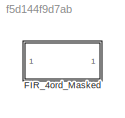
MODEL slx_f5d144f9d7ab
KIND library
CONFIG AbsTol = auto
CONFIG FixedStep = auto
CONFIG MaxStep = auto
CONFIG MinStep = auto
CONFIG RelTol = 1e-3
CONFIG SampleTimeConstraint = Unconstrained
CONFIG Solver = ode45
CONFIG SolverMode = Auto
CONFIG SolverName = ode45
CONFIG StartTime = 0.0
CONFIG StopTime = 10.0
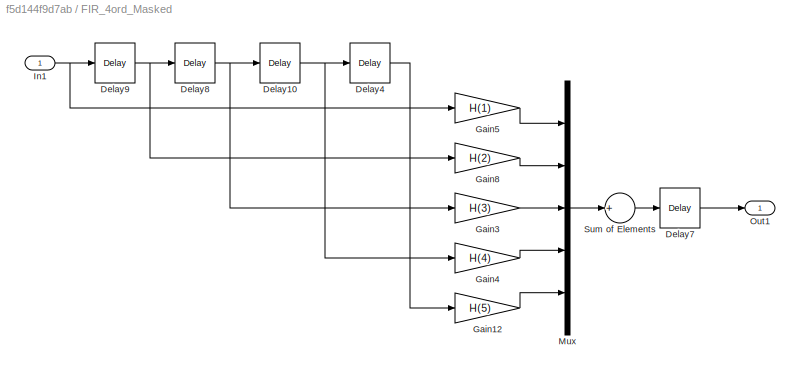
BLOCK [SubSystem] FIR_4ord_Masked
  Ports = [1, 1]
  RequestExecContextInheritance = off
  Variant = off
BLOCK [Reference] FIR_4ord_Masked/Delay10  REF=dspsigops/Delay
  Ports = [1, 1]
  SourceBlock = dspsigops/Delay
  SourceType = Delay
  UserDataPersistent = on
BLOCK [Reference] FIR_4ord_Masked/Delay4  REF=dspsigops/Delay
  Ports = [1, 1]
  SourceBlock = dspsigops/Delay
  SourceType = Delay
  UserDataPersistent = on
BLOCK [Reference] FIR_4ord_Masked/Delay7  REF=dspsigops/Delay
  Ports = [1, 1]
  SourceBlock = dspsigops/Delay
  SourceType = Delay
  UserDataPersistent = on
BLOCK [Reference] FIR_4ord_Masked/Delay8  REF=dspsigops/Delay
  Ports = [1, 1]
  SourceBlock = dspsigops/Delay
  SourceType = Delay
  UserDataPersistent = on
BLOCK [Reference] FIR_4ord_Masked/Delay9  REF=dspsigops/Delay
  Ports = [1, 1]
  SourceBlock = dspsigops/Delay
  SourceType = Delay
  UserDataPersistent = on
BLOCK [Gain] FIR_4ord_Masked/Gain12
  Gain = H(5)
  ParamDataTypeStr = Inherit: Inherit via internal rule
  RndMeth = Nearest
  SaturateOnIntegerOverflow = off
BLOCK [Gain] FIR_4ord_Masked/Gain3
  Gain = H(3)
  ParamDataTypeStr = Inherit: Inherit via internal rule
  RndMeth = Nearest
  SaturateOnIntegerOverflow = off
BLOCK [Gain] FIR_4ord_Masked/Gain4
  Gain = H(4)
  ParamDataTypeStr = Inherit: Inherit via internal rule
  RndMeth = Nearest
  SaturateOnIntegerOverflow = off
BLOCK [Gain] FIR_4ord_Masked/Gain5
  Gain = H(1)
  ParamDataTypeStr = Inherit: Inherit via internal rule
  RndMeth = Nearest
  SaturateOnIntegerOverflow = off
BLOCK [Gain] FIR_4ord_Masked/Gain8
  Gain = H(2)
  ParamDataTypeStr = Inherit: Inherit via internal rule
  RndMeth = Nearest
  SaturateOnIntegerOverflow = off
BLOCK [Inport] FIR_4ord_Masked/In1
  IconDisplay = Port number
BLOCK [Mux] FIR_4ord_Masked/Mux
  DisplayOption = bar
  Inputs = 5
  Ports = [5, 1]
BLOCK [Outport] FIR_4ord_Masked/Out1
  IconDisplay = Port number
BLOCK [Sum] FIR_4ord_Masked/Sum of Elements
  InputSameDT = off
  Inputs = +
  OutDataTypeStr = Inherit: Inherit via internal rule
  Ports = [1, 1]
  RndMeth = Nearest
  SaturateOnIntegerOverflow = off
NET FIR_4ord_Masked/Delay10:1 -> FIR_4ord_Masked/Delay4:1, FIR_4ord_Masked/Gain4:1
LINE FIR_4ord_Masked/Delay4:1 -> FIR_4ord_Masked/Gain12:1
LINE FIR_4ord_Masked/Delay7:1 -> FIR_4ord_Masked/Out1:1
NET FIR_4ord_Masked/Delay8:1 -> FIR_4ord_Masked/Delay10:1, FIR_4ord_Masked/Gain3:1
NET FIR_4ord_Masked/Delay9:1 -> FIR_4ord_Masked/Delay8:1, FIR_4ord_Masked/Gain8:1
LINE FIR_4ord_Masked/Gain12:1 -> FIR_4ord_Masked/Mux:5
LINE FIR_4ord_Masked/Gain3:1 -> FIR_4ord_Masked/Mux:3
LINE FIR_4ord_Masked/Gain4:1 -> FIR_4ord_Masked/Mux:4
LINE FIR_4ord_Masked/Gain5:1 -> FIR_4ord_Masked/Mux:1
LINE FIR_4ord_Masked/Gain8:1 -> FIR_4ord_Masked/Mux:2
NET FIR_4ord_Masked/In1:1 -> FIR_4ord_Masked/Delay9:1, FIR_4ord_Masked/Gain5:1
LINE FIR_4ord_Masked/Mux:1 -> FIR_4ord_Masked/Sum of Elements:1
LINE FIR_4ord_Masked/Sum of Elements:1 -> FIR_4ord_Masked/Delay7:1
note: NET lines group one-source signal fan-out (src -> all destinations, sorted); 1:1 wires keep LINE
